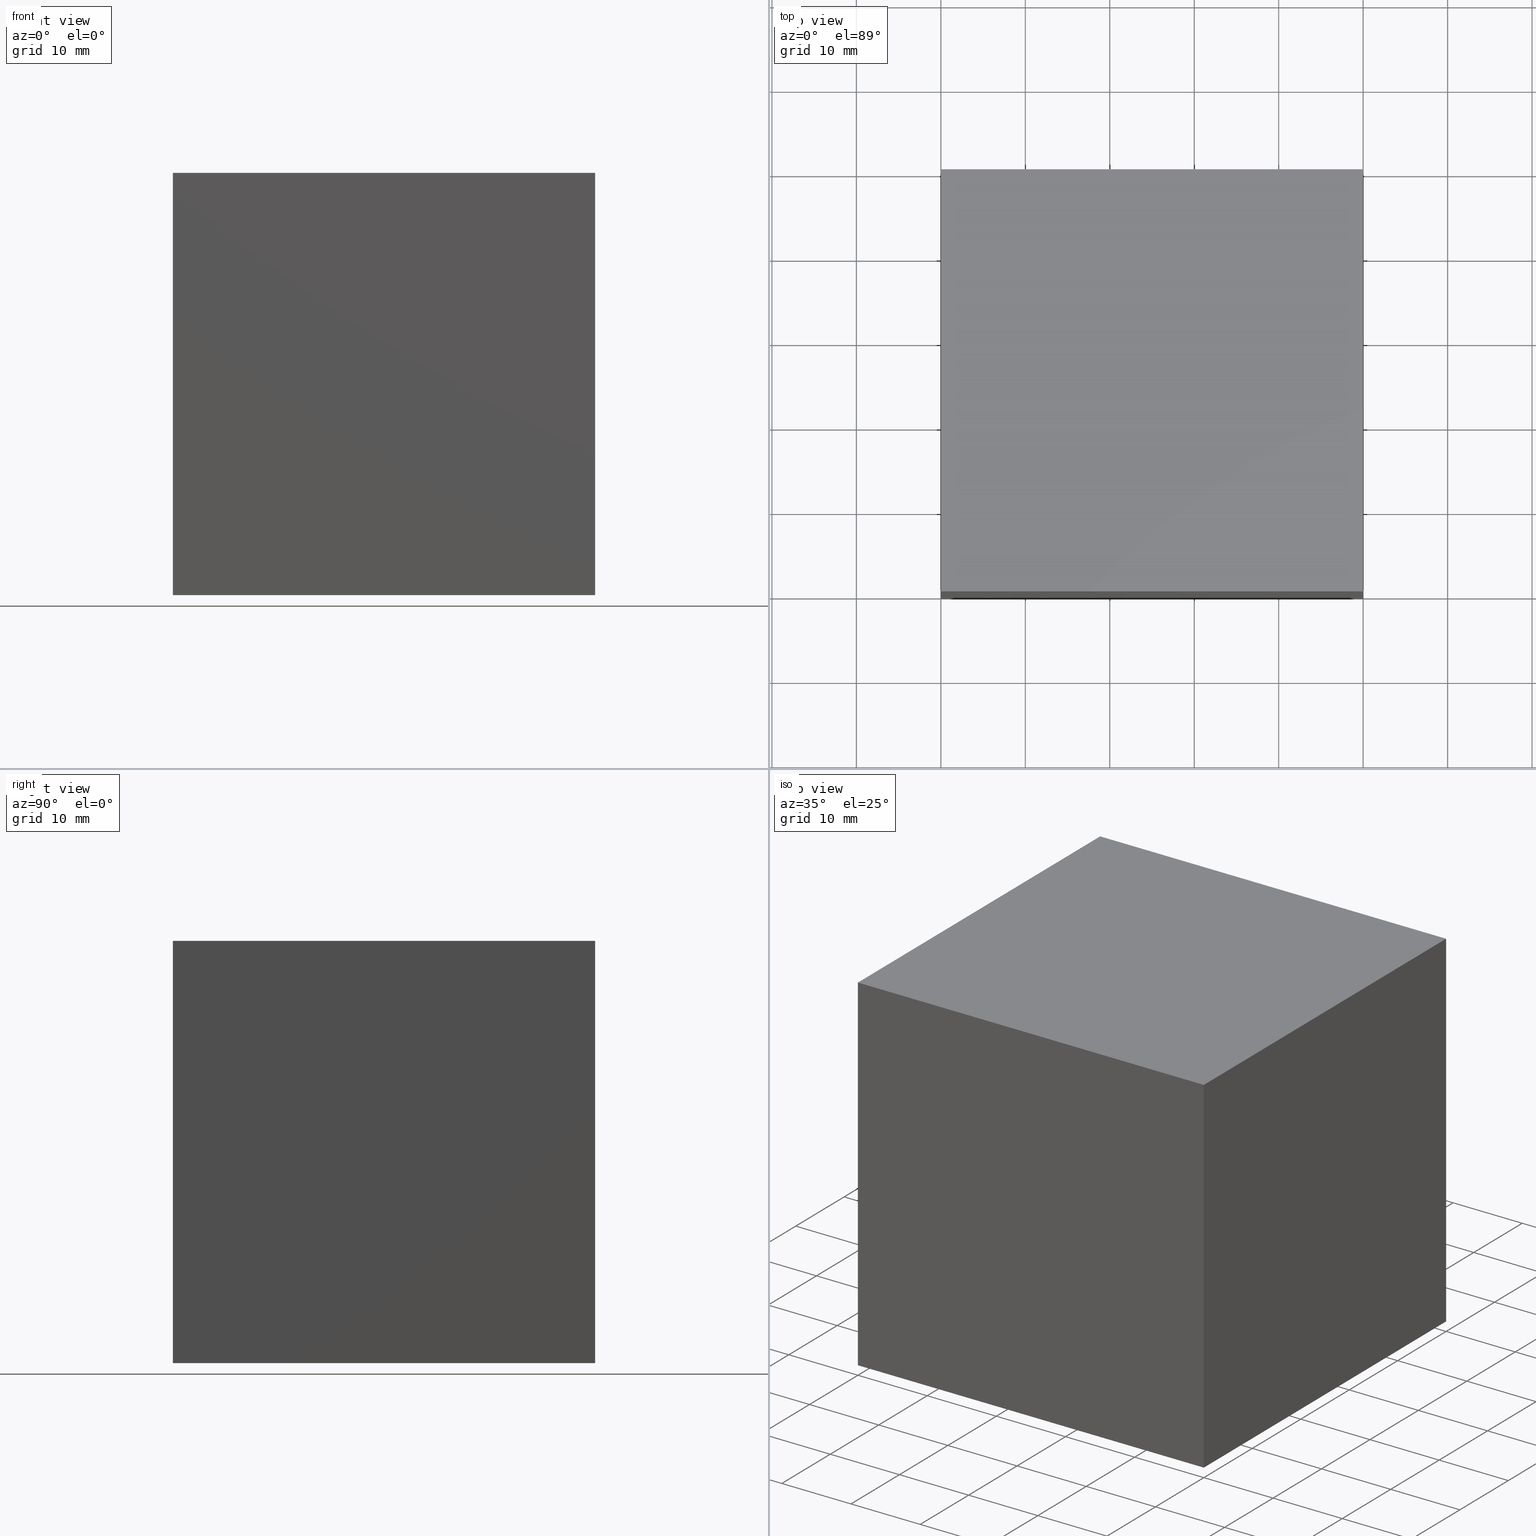
[diagram: canonical four-view strip — front | top / right | iso, engineering-drawing reading convention]
A machine part, canonical four-view strip (front | top / right | iso — engineering-drawing reading convention). The complete STEP part file that produces these views, byte-faithful:
ISO-10303-21;
HEADER;
FILE_DESCRIPTION (( 'STEP AP214' ),
    '1' );
FILE_NAME ('354510.STEP',
    '2019-08-16T03:07:14',
    ( 'user' ),
    ( '΢���й�' ),
    'SwSTEP 2.0',
    'SolidWorks 2016',
    '' );
FILE_SCHEMA (( 'AUTOMOTIVE_DESIGN' ));
ENDSEC;

DATA;
#1 = VECTOR ( 'NONE', #31, 1000.000000000000000 ) ;
#2 = COLOUR_RGB ( '',1.000000000000000000, 1.000000000000000000, 1.000000000000000000 ) ;
#3 = FACE_OUTER_BOUND ( 'NONE', #118, .T. ) ;
#4 = PLANE ( 'NONE',  #210 ) ;
#5 = ORIENTED_EDGE ( 'NONE', *, *, #108, .T. ) ;
#6 = SURFACE_STYLE_USAGE ( .BOTH. , #63 ) ;
#7 = EDGE_CURVE ( 'NONE', #181, #99, #288, .T. ) ;
#8 = LINE ( 'NONE', #88, #241 ) ;
#9 = DIRECTION ( 'NONE',  ( -0.0000000000000000000, -0.0000000000000000000, -1.000000000000000000 ) ) ;
#10 =( NAMED_UNIT ( * ) SI_UNIT ( $, .STERADIAN. ) SOLID_ANGLE_UNIT ( ) );
#11 = EDGE_LOOP ( 'NONE', ( #84, #177, #115 ) ) ;
#12 = VECTOR ( 'NONE', #171, 1000.000000000000000 ) ;
#13 = CARTESIAN_POINT ( 'NONE',  ( 0.0000000000000000000, 50.00000000000000000, -50.00000000000000000 ) ) ;
#14 = DIRECTION ( 'NONE',  ( 0.7071067811865475700, 0.0000000000000000000, 0.7071067811865474600 ) ) ;
#15 = CARTESIAN_POINT ( 'NONE',  ( 0.0000000000000000000, 50.00000000000000000, 0.0000000000000000000 ) ) ;
#16 = DIRECTION ( 'NONE',  ( 0.7071067811865475700, 0.0000000000000000000, 0.7071067811865474600 ) ) ;
#17 = ADVANCED_FACE ( 'NONE', ( #82 ), #299, .T. ) ;
#18 = CLOSED_SHELL ( 'NONE', ( #222, #19, #173, #199, #53 ) ) ;
#19 = ADVANCED_FACE ( 'NONE', ( #294 ), #269, .F. ) ;
#20 = CARTESIAN_POINT ( 'NONE',  ( -50.00000000000000000, 50.00000000000000000, 0.0000000000000000000 ) ) ;
#21 = UNCERTAINTY_MEASURE_WITH_UNIT (LENGTH_MEASURE( 1.000000000000000100E-005 ), #214, 'distance_accuracy_value', 'NONE');
#22 = CARTESIAN_POINT ( 'NONE',  ( -50.00000000000000000, 50.00000000000000000, -49.99999999999999300 ) ) ;
#23 = PRODUCT ( '354510', '354510', '', ( #253 ) ) ;
#24 = LINE ( 'NONE', #30, #215 ) ;
#25 = ORIENTED_EDGE ( 'NONE', *, *, #98, .F. ) ;
#26 = AXIS2_PLACEMENT_3D ( 'NONE', #152, #178, #131 ) ;
#27 =( NAMED_UNIT ( * ) PLANE_ANGLE_UNIT ( ) SI_UNIT ( $, .RADIAN. ) );
#28 =( NAMED_UNIT ( * ) PLANE_ANGLE_UNIT ( ) SI_UNIT ( $, .RADIAN. ) );
#29 = LINE ( 'NONE', #101, #67 ) ;
#30 = CARTESIAN_POINT ( 'NONE',  ( -50.00000000000000000, 50.00000000000000000, -49.99999999999999300 ) ) ;
#31 = DIRECTION ( 'NONE',  ( -0.0000000000000000000, -1.000000000000000000, -0.0000000000000000000 ) ) ;
#32 = PLANE ( 'NONE',  #107 ) ;
#33 = EDGE_CURVE ( 'NONE', #232, #256, #129, .T. ) ;
#34 = CARTESIAN_POINT ( 'NONE',  ( -50.00000000000000000, 0.0000000000000000000, 0.0000000000000000000 ) ) ;
#35 = LINE ( 'NONE', #255, #126 ) ;
#36 = ORIENTED_EDGE ( 'NONE', *, *, #170, .T. ) ;
#37 = ORIENTED_EDGE ( 'NONE', *, *, #7, .T. ) ;
#38 = FILL_AREA_STYLE_COLOUR ( '', #191 ) ;
#39 = LINE ( 'NONE', #166, #180 ) ;
#40 = CARTESIAN_POINT ( 'NONE',  ( 0.0000000000000000000, 0.0000000000000000000, 0.0000000000000000000 ) ) ;
#41 = ORIENTED_EDGE ( 'NONE', *, *, #290, .T. ) ;
#42 = ORIENTED_EDGE ( 'NONE', *, *, #218, .F. ) ;
#43 = PRESENTATION_STYLE_ASSIGNMENT (( #289 ) ) ;
#44 = COLOUR_RGB ( '',1.000000000000000000, 1.000000000000000000, 1.000000000000000000 ) ;
#45 = SURFACE_STYLE_USAGE ( .BOTH. , #185 ) ;
#46 = CARTESIAN_POINT ( 'NONE',  ( 0.0000000000000000000, 0.0000000000000000000, -50.00000000000000000 ) ) ;
#47 = LINE ( 'NONE', #85, #75 ) ;
#48 = DIRECTION ( 'NONE',  ( -0.0000000000000000000, -0.0000000000000000000, -1.000000000000000000 ) ) ;
#49 = DIRECTION ( 'NONE',  ( -0.0000000000000000000, 1.000000000000000000, 0.0000000000000000000 ) ) ;
#50 = FACE_OUTER_BOUND ( 'NONE', #251, .T. ) ;
#51 = CARTESIAN_POINT ( 'NONE',  ( 0.0000000000000000000, 50.00000000000000000, -50.00000000000000000 ) ) ;
#52 = AXIS2_PLACEMENT_3D ( 'NONE', #124, #73, #219 ) ;
#53 = ADVANCED_FACE ( 'NONE', ( #74 ), #229, .F. ) ;
#54 = EDGE_CURVE ( 'NONE', #232, #139, #203, .T. ) ;
#55 = ADVANCED_FACE ( 'NONE', ( #189 ), #301, .T. ) ;
#56 = VECTOR ( 'NONE', #83, 1000.000000000000000 ) ;
#57 = EDGE_LOOP ( 'NONE', ( #37, #60, #103, #162 ) ) ;
#58 = DIRECTION ( 'NONE',  ( 0.0000000000000000000, 0.0000000000000000000, 1.000000000000000000 ) ) ;
#59 = DIRECTION ( 'NONE',  ( -0.0000000000000000000, -1.000000000000000000, -0.0000000000000000000 ) ) ;
#60 = ORIENTED_EDGE ( 'NONE', *, *, #168, .F. ) ;
#61 = ORIENTED_EDGE ( 'NONE', *, *, #33, .F. ) ;
#62 = CARTESIAN_POINT ( 'NONE',  ( 0.0000000000000000000, 0.0000000000000000000, 0.0000000000000000000 ) ) ;
#63 = SURFACE_SIDE_STYLE ('',( #121 ) ) ;
#64 = DIRECTION ( 'NONE',  ( -0.0000000000000000000, -1.000000000000000000, -0.0000000000000000000 ) ) ;
#65 = UNCERTAINTY_MEASURE_WITH_UNIT (LENGTH_MEASURE( 1.000000000000000100E-005 ), #90, 'distance_accuracy_value', 'NONE');
#66 = VERTEX_POINT ( 'NONE', #34 ) ;
#67 = VECTOR ( 'NONE', #68, 1000.000000000000000 ) ;
#68 = DIRECTION ( 'NONE',  ( 0.0000000000000000000, -1.000000000000000000, 0.0000000000000000000 ) ) ;
#69 = DIRECTION ( 'NONE',  ( 1.000000000000000000, 0.0000000000000000000, -1.387778780781445700E-016 ) ) ;
#70 = DIRECTION ( 'NONE',  ( 0.0000000000000000000, -0.0000000000000000000, 1.000000000000000000 ) ) ;
#71 = VECTOR ( 'NONE', #216, 1000.000000000000000 ) ;
#72 = EDGE_CURVE ( 'NONE', #139, #181, #261, .T. ) ;
#73 = DIRECTION ( 'NONE',  ( -1.000000000000000000, 0.0000000000000000000, 0.0000000000000000000 ) ) ;
#74 = FACE_OUTER_BOUND ( 'NONE', #220, .T. ) ;
#75 = VECTOR ( 'NONE', #64, 1000.000000000000000 ) ;
#76 = ORIENTED_EDGE ( 'NONE', *, *, #290, .F. ) ;
#77 = DIRECTION ( 'NONE',  ( 0.7071067811865475700, 0.0000000000000000000, 0.7071067811865474600 ) ) ;
#78 = AXIS2_PLACEMENT_3D ( 'NONE', #20, #291, #268 ) ;
#79 = AXIS2_PLACEMENT_3D ( 'NONE', #280, #231, #111 ) ;
#80 = CARTESIAN_POINT ( 'NONE',  ( 0.0000000000000000000, 50.00000000000000000, -50.00000000000000000 ) ) ;
#81 = DIRECTION ( 'NONE',  ( 0.7071067811865474600, 0.0000000000000000000, -0.7071067811865476800 ) ) ;
#82 = FACE_OUTER_BOUND ( 'NONE', #281, .T. ) ;
#83 = DIRECTION ( 'NONE',  ( 0.0000000000000000000, -1.000000000000000000, 0.0000000000000000000 ) ) ;
#84 = ORIENTED_EDGE ( 'NONE', *, *, #151, .T. ) ;
#85 = CARTESIAN_POINT ( 'NONE',  ( 0.0000000000000000000, 50.00000000000000000, -50.00000000000000000 ) ) ;
#86 = DIRECTION ( 'NONE',  ( 0.0000000000000000000, 1.000000000000000000, 0.0000000000000000000 ) ) ;
#87 = ORIENTED_EDGE ( 'NONE', *, *, #94, .T. ) ;
#88 = CARTESIAN_POINT ( 'NONE',  ( 0.0000000000000000000, 50.00000000000000000, 0.0000000000000000000 ) ) ;
#89 = CARTESIAN_POINT ( 'NONE',  ( 0.0000000000000000000, 0.0000000000000000000, 0.0000000000000000000 ) ) ;
#90 =( LENGTH_UNIT ( ) NAMED_UNIT ( * ) SI_UNIT ( .MILLI., .METRE. ) );
#91 = DIRECTION ( 'NONE',  ( 0.0000000000000000000, 0.0000000000000000000, -1.000000000000000000 ) ) ;
#92 = STYLED_ITEM ( 'NONE', ( #230 ), #120 ) ;
#93 = ADVANCED_FACE ( 'NONE', ( #293 ), #146, .T. ) ;
#94 = EDGE_CURVE ( 'NONE', #256, #252, #285, .T. ) ;
#95 = FACE_OUTER_BOUND ( 'NONE', #11, .T. ) ;
#96 = ORIENTED_EDGE ( 'NONE', *, *, #7, .F. ) ;
#97 = EDGE_CURVE ( 'NONE', #192, #66, #136, .T. ) ;
#98 = EDGE_CURVE ( 'NONE', #221, #175, #29, .T. ) ;
#99 = VERTEX_POINT ( 'NONE', #46 ) ;
#100 = CARTESIAN_POINT ( 'NONE',  ( 0.0000000000000000000, 50.00000000000000000, 0.0000000000000000000 ) ) ;
#101 = CARTESIAN_POINT ( 'NONE',  ( -50.00000000000000000, 50.00000000000000000, -49.99999999999999300 ) ) ;
#102 = LINE ( 'NONE', #106, #295 ) ;
#103 = ORIENTED_EDGE ( 'NONE', *, *, #94, .F. ) ;
#104 = ORIENTED_EDGE ( 'NONE', *, *, #112, .F. ) ;
#105 = AXIS2_PLACEMENT_3D ( 'NONE', #213, #86, #257 ) ;
#106 = CARTESIAN_POINT ( 'NONE',  ( -50.00000000000000000, 50.00000000000000000, 0.0000000000000000000 ) ) ;
#107 = AXIS2_PLACEMENT_3D ( 'NONE', #287, #49, #70 ) ;
#108 = EDGE_CURVE ( 'NONE', #243, #221, #24, .T. ) ;
#109 = PLANE ( 'NONE',  #149 ) ;
#110 = EDGE_LOOP ( 'NONE', ( #265, #145, #61, #248 ) ) ;
#111 = DIRECTION ( 'NONE',  ( 0.0000000000000000000, -0.0000000000000000000, 1.000000000000000000 ) ) ;
#112 = EDGE_CURVE ( 'NONE', #172, #243, #39, .T. ) ;
#113 = CARTESIAN_POINT ( 'NONE',  ( 0.0000000000000000000, 0.0000000000000000000, 0.0000000000000000000 ) ) ;
#114 = SURFACE_SIDE_STYLE ('',( #143 ) ) ;
#115 = ORIENTED_EDGE ( 'NONE', *, *, #218, .T. ) ;
#116 = DIRECTION ( 'NONE',  ( 0.7071067811865474600, 0.0000000000000000000, -0.7071067811865476800 ) ) ;
#117 = ADVANCED_BREP_SHAPE_REPRESENTATION ( '354510', ( #183, #120, #277 ), #127 ) ;
#118 = EDGE_LOOP ( 'NONE', ( #154, #282, #76, #207 ) ) ;
#119 = ADVANCED_FACE ( 'NONE', ( #95 ), #211, .F. ) ;
#120 = MANIFOLD_SOLID_BREP ( '͹̨-����2', #272 ) ;
#121 = SURFACE_STYLE_FILL_AREA ( #134 ) ;
#122 = EDGE_LOOP ( 'NONE', ( #193, #87, #41 ) ) ;
#123 = DIRECTION ( 'NONE',  ( 0.0000000000000000000, 0.0000000000000000000, -1.000000000000000000 ) ) ;
#124 = CARTESIAN_POINT ( 'NONE',  ( -50.00000000000000000, 50.00000000000000000, -49.99999999999999300 ) ) ;
#125 = PRESENTATION_LAYER_ASSIGNMENT (  '', '', ( #92 ) ) ;
#126 = VECTOR ( 'NONE', #48, 1000.000000000000000 ) ;
#127 =( GEOMETRIC_REPRESENTATION_CONTEXT ( 3 ) GLOBAL_UNCERTAINTY_ASSIGNED_CONTEXT ( ( #65 ) ) GLOBAL_UNIT_ASSIGNED_CONTEXT ( ( #90, #237, #10 ) ) REPRESENTATION_CONTEXT ( 'NONE', 'WORKASPACE' ) );
#128 = ORIENTED_EDGE ( 'NONE', *, *, #184, .T. ) ;
#129 = LINE ( 'NONE', #202, #258 ) ;
#130 = PRESENTATION_STYLE_ASSIGNMENT (( #6 ) ) ;
#131 = DIRECTION ( 'NONE',  ( 0.0000000000000000000, -0.0000000000000000000, 1.000000000000000000 ) ) ;
#132 = DIRECTION ( 'NONE',  ( 1.000000000000000000, 0.0000000000000000000, 0.0000000000000000000 ) ) ;
#133 = EDGE_CURVE ( 'NONE', #243, #66, #102, .T. ) ;
#134 = FILL_AREA_STYLE ('',( #38 ) ) ;
#135 = ORIENTED_EDGE ( 'NONE', *, *, #170, .F. ) ;
#136 = LINE ( 'NONE', #249, #12 ) ;
#137 = LINE ( 'NONE', #169, #1 ) ;
#138 =( NAMED_UNIT ( * ) SI_UNIT ( $, .STERADIAN. ) SOLID_ANGLE_UNIT ( ) );
#139 = VERTEX_POINT ( 'NONE', #188 ) ;
#140 = DIRECTION ( 'NONE',  ( -1.000000000000000000, -0.0000000000000000000, -0.0000000000000000000 ) ) ;
#141 = CARTESIAN_POINT ( 'NONE',  ( -50.00000000000000000, 50.00000000000000000, -49.99999999999999300 ) ) ;
#142 = PRODUCT_DEFINITION_CONTEXT ( 'detailed design', #186, 'design' ) ;
#143 = SURFACE_STYLE_FILL_AREA ( #267 ) ;
#144 = PLANE ( 'NONE',  #79 ) ;
#145 = ORIENTED_EDGE ( 'NONE', *, *, #260, .F. ) ;
#146 = PLANE ( 'NONE',  #78 ) ;
#147 = DIRECTION ( 'NONE',  ( -0.7071067811865476800, 0.0000000000000000000, -0.7071067811865474600 ) ) ;
#148 = MECHANICAL_DESIGN_GEOMETRIC_PRESENTATION_REPRESENTATION (  '', ( #92 ), #163 ) ;
#149 = AXIS2_PLACEMENT_3D ( 'NONE', #22, #81, #274 ) ;
#150 = VECTOR ( 'NONE', #276, 1000.000000000000000 ) ;
#151 = EDGE_CURVE ( 'NONE', #175, #192, #225, .T. ) ;
#152 = CARTESIAN_POINT ( 'NONE',  ( 0.0000000000000000000, 0.0000000000000000000, 0.0000000000000000000 ) ) ;
#153 = ORIENTED_EDGE ( 'NONE', *, *, #108, .F. ) ;
#154 = ORIENTED_EDGE ( 'NONE', *, *, #201, .T. ) ;
#155 = CARTESIAN_POINT ( 'NONE',  ( -50.00000000000000000, 50.00000000000000000, -49.99999999999999300 ) ) ;
#156 = FACE_OUTER_BOUND ( 'NONE', #122, .T. ) ;
#157 = DIRECTION ( 'NONE',  ( 0.0000000000000000000, 0.0000000000000000000, 1.000000000000000000 ) ) ;
#158 = DIRECTION ( 'NONE',  ( 1.387778780781445700E-016, -0.0000000000000000000, 1.000000000000000000 ) ) ;
#159 = VECTOR ( 'NONE', #91, 1000.000000000000000 ) ;
#160 = CARTESIAN_POINT ( 'NONE',  ( 0.0000000000000000000, 50.00000000000000000, 0.0000000000000000000 ) ) ;
#161 =( LENGTH_UNIT ( ) NAMED_UNIT ( * ) SI_UNIT ( .MILLI., .METRE. ) );
#162 = ORIENTED_EDGE ( 'NONE', *, *, #260, .T. ) ;
#163 =( GEOMETRIC_REPRESENTATION_CONTEXT ( 3 ) GLOBAL_UNCERTAINTY_ASSIGNED_CONTEXT ( ( #296 ) ) GLOBAL_UNIT_ASSIGNED_CONTEXT ( ( #164, #28, #138 ) ) REPRESENTATION_CONTEXT ( 'NONE', 'WORKASPACE' ) );
#164 =( LENGTH_UNIT ( ) NAMED_UNIT ( * ) SI_UNIT ( .MILLI., .METRE. ) );
#165 = VECTOR ( 'NONE', #16, 1000.000000000000000 ) ;
#166 = CARTESIAN_POINT ( 'NONE',  ( -50.00000000000000000, 50.00000000000000000, 0.0000000000000000000 ) ) ;
#167 = CARTESIAN_POINT ( 'NONE',  ( -50.00000000000000000, 50.00000000000000000, -49.99999999999999300 ) ) ;
#168 = EDGE_CURVE ( 'NONE', #252, #99, #47, .T. ) ;
#169 = CARTESIAN_POINT ( 'NONE',  ( 0.0000000000000000000, 50.00000000000000000, 0.0000000000000000000 ) ) ;
#170 = EDGE_CURVE ( 'NONE', #172, #192, #271, .T. ) ;
#171 = DIRECTION ( 'NONE',  ( -1.000000000000000000, -0.0000000000000000000, -0.0000000000000000000 ) ) ;
#172 = VERTEX_POINT ( 'NONE', #250 ) ;
#173 = ADVANCED_FACE ( 'NONE', ( #3 ), #4, .F. ) ;
#174 = SURFACE_STYLE_FILL_AREA ( #236 ) ;
#175 = VERTEX_POINT ( 'NONE', #182 ) ;
#176 = APPLICATION_CONTEXT ( 'automotive_design' ) ;
#177 = ORIENTED_EDGE ( 'NONE', *, *, #97, .T. ) ;
#178 = DIRECTION ( 'NONE',  ( -0.0000000000000000000, 1.000000000000000000, 0.0000000000000000000 ) ) ;
#179 = STYLED_ITEM ( 'NONE', ( #130 ), #117 ) ;
#180 = VECTOR ( 'NONE', #140, 1000.000000000000000 ) ;
#181 = VERTEX_POINT ( 'NONE', #89 ) ;
#182 = CARTESIAN_POINT ( 'NONE',  ( -50.00000000000000000, -0.0000000000000000000, -49.99999999999999300 ) ) ;
#183 = MANIFOLD_SOLID_BREP ( '͹̨-����1', #18 ) ;
#184 = EDGE_CURVE ( 'NONE', #221, #172, #8, .T. ) ;
#185 = SURFACE_SIDE_STYLE ('',( #174 ) ) ;
#186 = APPLICATION_CONTEXT ( 'automotive_design' ) ;
#187 = ORIENTED_EDGE ( 'NONE', *, *, #97, .F. ) ;
#188 = CARTESIAN_POINT ( 'NONE',  ( -50.00000000000000000, 0.0000000000000000000, -49.99999999999999300 ) ) ;
#189 = FACE_OUTER_BOUND ( 'NONE', #190, .T. ) ;
#190 = EDGE_LOOP ( 'NONE', ( #42, #283, #5, #245 ) ) ;
#191 = COLOUR_RGB ( '',1.000000000000000000, 1.000000000000000000, 1.000000000000000000 ) ;
#192 = VERTEX_POINT ( 'NONE', #113 ) ;
#193 = ORIENTED_EDGE ( 'NONE', *, *, #33, .T. ) ;
#194 = CARTESIAN_POINT ( 'NONE',  ( -50.00000000000000000, 0.0000000000000000000, -49.99999999999999300 ) ) ;
#195 = ADVANCED_FACE ( 'NONE', ( #50 ), #144, .T. ) ;
#196 = FACE_OUTER_BOUND ( 'NONE', #110, .T. ) ;
#197 = STYLED_ITEM ( 'NONE', ( #43 ), #183 ) ;
#198 = PRESENTATION_LAYER_ASSIGNMENT (  '', '', ( #179 ) ) ;
#199 = ADVANCED_FACE ( 'NONE', ( #156 ), #32, .T. ) ;
#200 = ORIENTED_EDGE ( 'NONE', *, *, #72, .F. ) ;
#201 = EDGE_CURVE ( 'NONE', #99, #139, #206, .T. ) ;
#202 = CARTESIAN_POINT ( 'NONE',  ( -50.00000000000000000, 50.00000000000000000, -49.99999999999999300 ) ) ;
#203 = LINE ( 'NONE', #155, #227 ) ;
#204 = CARTESIAN_POINT ( 'NONE',  ( 0.0000000000000000000, 0.0000000000000000000, -50.00000000000000000 ) ) ;
#205 = APPLICATION_PROTOCOL_DEFINITION ( 'draft international standard', 'automotive_design', 1998, #186 ) ;
#206 = LINE ( 'NONE', #204, #71 ) ;
#207 = ORIENTED_EDGE ( 'NONE', *, *, #168, .T. ) ;
#208 = ORIENTED_EDGE ( 'NONE', *, *, #112, .T. ) ;
#209 = SHAPE_DEFINITION_REPRESENTATION ( #279, #117 ) ;
#210 = AXIS2_PLACEMENT_3D ( 'NONE', #80, #158, #69 ) ;
#211 = PLANE ( 'NONE',  #105 ) ;
#212 = MECHANICAL_DESIGN_GEOMETRIC_PRESENTATION_REPRESENTATION (  '', ( #179 ), #228 ) ;
#213 = CARTESIAN_POINT ( 'NONE',  ( 0.0000000000000000000, 0.0000000000000000000, 0.0000000000000000000 ) ) ;
#214 =( LENGTH_UNIT ( ) NAMED_UNIT ( * ) SI_UNIT ( .MILLI., .METRE. ) );
#215 = VECTOR ( 'NONE', #9, 1000.000000000000000 ) ;
#216 = DIRECTION ( 'NONE',  ( -1.000000000000000000, 0.0000000000000000000, 1.387778780781445700E-016 ) ) ;
#217 = ORIENTED_EDGE ( 'NONE', *, *, #184, .F. ) ;
#218 = EDGE_CURVE ( 'NONE', #66, #175, #35, .T. ) ;
#219 = DIRECTION ( 'NONE',  ( 0.0000000000000000000, 0.0000000000000000000, 1.000000000000000000 ) ) ;
#220 = EDGE_LOOP ( 'NONE', ( #200, #297, #96 ) ) ;
#221 = VERTEX_POINT ( 'NONE', #141 ) ;
#222 = ADVANCED_FACE ( 'NONE', ( #196 ), #109, .F. ) ;
#223 = PRODUCT_DEFINITION ( 'δ֪', '', #235, #142 ) ;
#224 = VECTOR ( 'NONE', #123, 1000.000000000000000 ) ;
#225 = LINE ( 'NONE', #40, #150 ) ;
#226 = DIRECTION ( 'NONE',  ( -1.000000000000000000, 0.0000000000000000000, 0.0000000000000000000 ) ) ;
#227 = VECTOR ( 'NONE', #59, 1000.000000000000000 ) ;
#228 =( GEOMETRIC_REPRESENTATION_CONTEXT ( 3 ) GLOBAL_UNCERTAINTY_ASSIGNED_CONTEXT ( ( #254 ) ) GLOBAL_UNIT_ASSIGNED_CONTEXT ( ( #161, #27, #300 ) ) REPRESENTATION_CONTEXT ( 'NONE', 'WORKASPACE' ) );
#229 = PLANE ( 'NONE',  #26 ) ;
#230 = PRESENTATION_STYLE_ASSIGNMENT (( #45 ) ) ;
#231 = DIRECTION ( 'NONE',  ( 0.0000000000000000000, 1.000000000000000000, 0.0000000000000000000 ) ) ;
#232 = VERTEX_POINT ( 'NONE', #167 ) ;
#233 = PRESENTATION_LAYER_ASSIGNMENT (  '', '', ( #197 ) ) ;
#234 = DIRECTION ( 'NONE',  ( 0.0000000000000000000, -1.000000000000000000, 0.0000000000000000000 ) ) ;
#235 = PRODUCT_DEFINITION_FORMATION_WITH_SPECIFIED_SOURCE ( '�κ�', '', #23, .NOT_KNOWN. ) ;
#236 = FILL_AREA_STYLE ('',( #284 ) ) ;
#237 =( NAMED_UNIT ( * ) PLANE_ANGLE_UNIT ( ) SI_UNIT ( $, .RADIAN. ) );
#238 = FILL_AREA_STYLE_COLOUR ( '', #44 ) ;
#239 = CARTESIAN_POINT ( 'NONE',  ( 0.0000000000000000000, 50.00000000000000000, 0.0000000000000000000 ) ) ;
#240 = CARTESIAN_POINT ( 'NONE',  ( 0.0000000000000000000, 50.00000000000000000, 0.0000000000000000000 ) ) ;
#241 = VECTOR ( 'NONE', #14, 1000.000000000000000 ) ;
#242 = VECTOR ( 'NONE', #278, 1000.000000000000000 ) ;
#243 = VERTEX_POINT ( 'NONE', #286 ) ;
#244 = MECHANICAL_DESIGN_GEOMETRIC_PRESENTATION_REPRESENTATION (  '', ( #197 ), #266 ) ;
#245 = ORIENTED_EDGE ( 'NONE', *, *, #98, .T. ) ;
#246 = LINE ( 'NONE', #51, #242 ) ;
#247 = PRODUCT_RELATED_PRODUCT_CATEGORY ( 'part', '', ( #23 ) ) ;
#248 = ORIENTED_EDGE ( 'NONE', *, *, #54, .T. ) ;
#249 = CARTESIAN_POINT ( 'NONE',  ( -50.00000000000000000, 0.0000000000000000000, 0.0000000000000000000 ) ) ;
#250 = CARTESIAN_POINT ( 'NONE',  ( 0.0000000000000000000, 50.00000000000000000, 0.0000000000000000000 ) ) ;
#251 = EDGE_LOOP ( 'NONE', ( #217, #153, #104 ) ) ;
#252 = VERTEX_POINT ( 'NONE', #13 ) ;
#253 = PRODUCT_CONTEXT ( 'NONE', #176, 'mechanical' ) ;
#254 = UNCERTAINTY_MEASURE_WITH_UNIT (LENGTH_MEASURE( 1.000000000000000100E-005 ), #161, 'distance_accuracy_value', 'NONE');
#255 = CARTESIAN_POINT ( 'NONE',  ( -50.00000000000000000, -0.0000000000000000000, -49.99999999999999300 ) ) ;
#256 = VERTEX_POINT ( 'NONE', #100 ) ;
#257 = DIRECTION ( 'NONE',  ( 0.0000000000000000000, -0.0000000000000000000, 1.000000000000000000 ) ) ;
#258 = VECTOR ( 'NONE', #77, 1000.000000000000000 ) ;
#259 = APPLICATION_PROTOCOL_DEFINITION ( 'draft international standard', 'automotive_design', 1998, #176 ) ;
#260 = EDGE_CURVE ( 'NONE', #256, #181, #137, .T. ) ;
#261 = LINE ( 'NONE', #194, #165 ) ;
#262 =( NAMED_UNIT ( * ) PLANE_ANGLE_UNIT ( ) SI_UNIT ( $, .RADIAN. ) );
#263 =( NAMED_UNIT ( * ) SI_UNIT ( $, .STERADIAN. ) SOLID_ANGLE_UNIT ( ) );
#264 = AXIS2_PLACEMENT_3D ( 'NONE', #239, #116, #147 ) ;
#265 = ORIENTED_EDGE ( 'NONE', *, *, #72, .T. ) ;
#266 =( GEOMETRIC_REPRESENTATION_CONTEXT ( 3 ) GLOBAL_UNCERTAINTY_ASSIGNED_CONTEXT ( ( #21 ) ) GLOBAL_UNIT_ASSIGNED_CONTEXT ( ( #214, #262, #263 ) ) REPRESENTATION_CONTEXT ( 'NONE', 'WORKASPACE' ) );
#267 = FILL_AREA_STYLE ('',( #238 ) ) ;
#268 = DIRECTION ( 'NONE',  ( 1.000000000000000000, 0.0000000000000000000, 0.0000000000000000000 ) ) ;
#269 = PLANE ( 'NONE',  #298 ) ;
#270 = ORIENTED_EDGE ( 'NONE', *, *, #151, .F. ) ;
#271 = LINE ( 'NONE', #160, #56 ) ;
#272 = CLOSED_SHELL ( 'NONE', ( #17, #55, #93, #195, #119 ) ) ;
#273 = CARTESIAN_POINT ( 'NONE',  ( 0.0000000000000000000, 0.0000000000000000000, 0.0000000000000000000 ) ) ;
#274 = DIRECTION ( 'NONE',  ( -0.7071067811865476800, 0.0000000000000000000, -0.7071067811865474600 ) ) ;
#275 = EDGE_LOOP ( 'NONE', ( #187, #135, #208, #292 ) ) ;
#276 = DIRECTION ( 'NONE',  ( 0.7071067811865475700, 0.0000000000000000000, 0.7071067811865474600 ) ) ;
#277 = AXIS2_PLACEMENT_3D ( 'NONE', #62, #157, #132 ) ;
#278 = DIRECTION ( 'NONE',  ( -1.000000000000000000, 0.0000000000000000000, 1.387778780781445700E-016 ) ) ;
#279 = PRODUCT_DEFINITION_SHAPE ( 'NONE', 'NONE',  #223 ) ;
#280 = CARTESIAN_POINT ( 'NONE',  ( 0.0000000000000000000, 50.00000000000000000, 0.0000000000000000000 ) ) ;
#281 = EDGE_LOOP ( 'NONE', ( #270, #25, #128, #36 ) ) ;
#282 = ORIENTED_EDGE ( 'NONE', *, *, #54, .F. ) ;
#283 = ORIENTED_EDGE ( 'NONE', *, *, #133, .F. ) ;
#284 = FILL_AREA_STYLE_COLOUR ( '', #2 ) ;
#285 = LINE ( 'NONE', #240, #159 ) ;
#286 = CARTESIAN_POINT ( 'NONE',  ( -50.00000000000000000, 50.00000000000000000, 0.0000000000000000000 ) ) ;
#287 = CARTESIAN_POINT ( 'NONE',  ( 0.0000000000000000000, 50.00000000000000000, 0.0000000000000000000 ) ) ;
#288 = LINE ( 'NONE', #273, #224 ) ;
#289 = SURFACE_STYLE_USAGE ( .BOTH. , #114 ) ;
#290 = EDGE_CURVE ( 'NONE', #252, #232, #246, .T. ) ;
#291 = DIRECTION ( 'NONE',  ( -0.0000000000000000000, 0.0000000000000000000, 1.000000000000000000 ) ) ;
#292 = ORIENTED_EDGE ( 'NONE', *, *, #133, .T. ) ;
#293 = FACE_OUTER_BOUND ( 'NONE', #275, .T. ) ;
#294 = FACE_OUTER_BOUND ( 'NONE', #57, .T. ) ;
#295 = VECTOR ( 'NONE', #234, 1000.000000000000000 ) ;
#296 = UNCERTAINTY_MEASURE_WITH_UNIT (LENGTH_MEASURE( 1.000000000000000100E-005 ), #164, 'distance_accuracy_value', 'NONE');
#297 = ORIENTED_EDGE ( 'NONE', *, *, #201, .F. ) ;
#298 = AXIS2_PLACEMENT_3D ( 'NONE', #15, #226, #58 ) ;
#299 = PLANE ( 'NONE',  #264 ) ;
#300 =( NAMED_UNIT ( * ) SI_UNIT ( $, .STERADIAN. ) SOLID_ANGLE_UNIT ( ) );
#301 = PLANE ( 'NONE',  #52 ) ;
ENDSEC;
END-ISO-10303-21;
